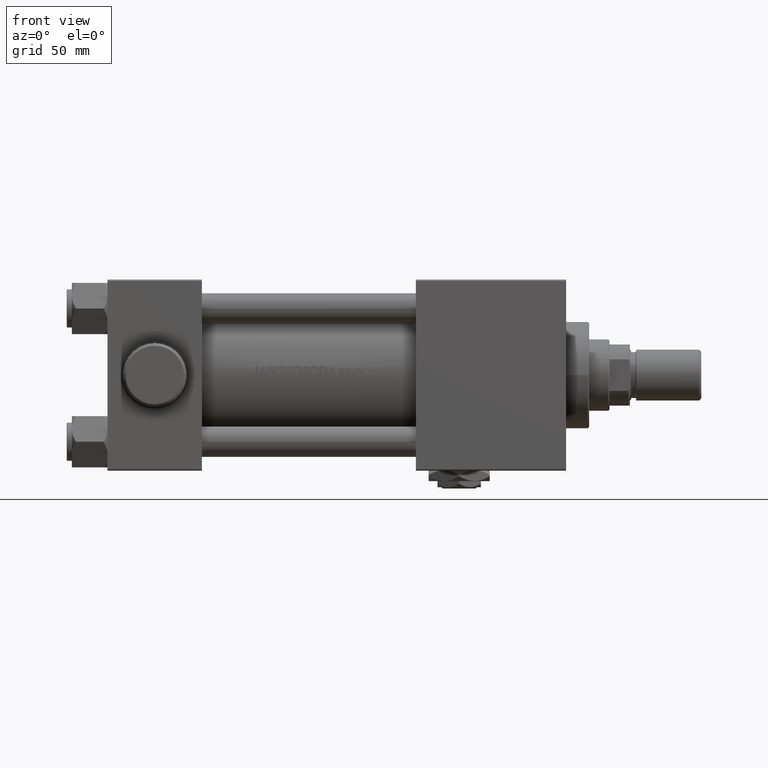
[diagram: clean part render]
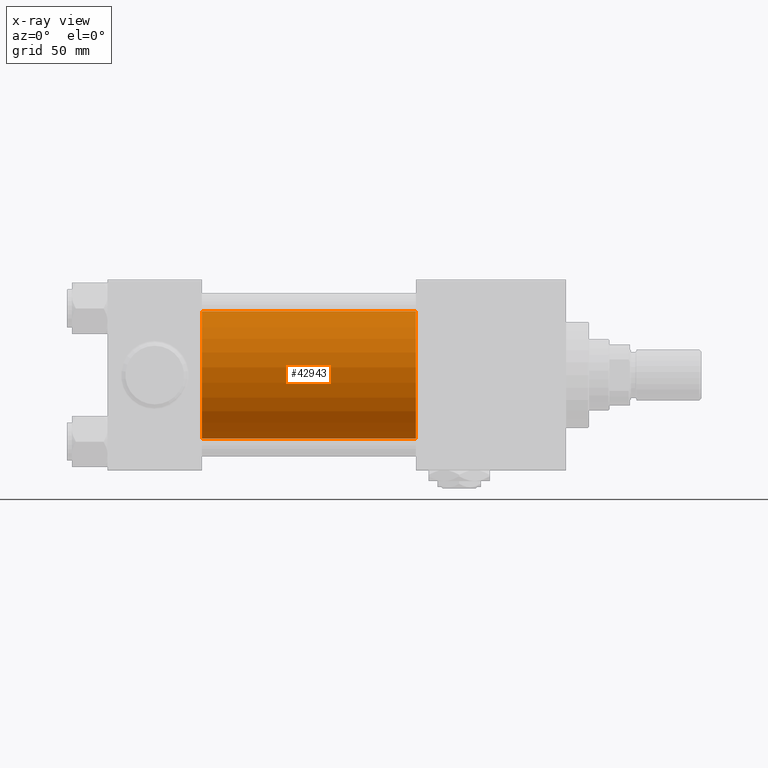
[diagram: x-ray — body ghosted, one internal face saturated and labeled with its STEP entity id]
A machine part, front view, then the same camera in x-ray: the body is ghosted and one INTERNAL B-rep face — a face not visible from any outside direction — is saturated and labeled: STEP entity #42943.
In plain terms, the highlighted cylindrical surface (partial cylindrical patch) has radius 25 mm, axis along (-1, -0, -0).
Its self-contained STEP definition (entity closure, byte-faithful):
#2104 = EDGE_CURVE ( 'NONE', #13877, #17465, #10193, .T. ) ;
#2132 = DIRECTION ( 'NONE',  ( 0.000000000000000000, 0.000000000000000000, -1.000000000000000000 ) ) ;
#6328 = CARTESIAN_POINT ( 'NONE',  ( 37.00000000000000000, -4.078299540852317872E-16, -25.00000000000000000 ) ) ;
#10193 = LINE ( 'NONE', #44637, #14612 ) ;
#12451 = ORIENTED_EDGE ( 'NONE', *, *, #41857, .T. ) ;
#13580 = ORIENTED_EDGE ( 'NONE', *, *, #41921, .T. ) ;
#13877 = VERTEX_POINT ( 'NONE', #22651 ) ;
#14612 = VECTOR ( 'NONE', #29019, 1000.000000000000000 ) ;
#16988 = CARTESIAN_POINT ( 'NONE',  ( 121.0000000000000000, -4.078299540852317872E-16, -25.00000000000000000 ) ) ;
#17465 = VERTEX_POINT ( 'NONE', #24243 ) ;
#17635 = VECTOR ( 'NONE', #24686, 1000.000000000000000 ) ;
#19555 = ORIENTED_EDGE ( 'NONE', *, *, #2104, .F. ) ;
#20122 = CYLINDRICAL_SURFACE ( 'NONE', #47695, 25.00000000000000000 ) ;
#21136 = CARTESIAN_POINT ( 'NONE',  ( 37.00000000000000000, -3.469446951953614189E-15, 0.000000000000000000 ) ) ;
#21210 = LINE ( 'NONE', #16988, #17635 ) ;
#22363 = CIRCLE ( 'NONE', #28682, 25.00000000000000000 ) ;
#22651 = CARTESIAN_POINT ( 'NONE',  ( 121.0000000000000000, -3.469446951953614189E-15, 25.00000000000000000 ) ) ;
#24243 = CARTESIAN_POINT ( 'NONE',  ( 37.00000000000000000, -3.469446951953614189E-15, 25.00000000000000000 ) ) ;
#24442 = CARTESIAN_POINT ( 'NONE',  ( 121.0000000000000000, -3.469446951953614189E-15, 0.000000000000000000 ) ) ;
#24686 = DIRECTION ( 'NONE',  ( -1.000000000000000000, -0.000000000000000000, -0.000000000000000000 ) ) ;
#27089 = DIRECTION ( 'NONE',  ( 0.000000000000000000, 0.000000000000000000, 1.000000000000000000 ) ) ;
#28682 = AXIS2_PLACEMENT_3D ( 'NONE', #21136, #36269, #32544 ) ;
#29019 = DIRECTION ( 'NONE',  ( -1.000000000000000000, -0.000000000000000000, -0.000000000000000000 ) ) ;
#29041 = ORIENTED_EDGE ( 'NONE', *, *, #40566, .F. ) ;
#29135 = DIRECTION ( 'NONE',  ( 1.000000000000000000, 0.000000000000000000, 0.000000000000000000 ) ) ;
#31180 = CARTESIAN_POINT ( 'NONE',  ( 121.0000000000000000, -4.078299540852317872E-16, -25.00000000000000000 ) ) ;
#32544 = DIRECTION ( 'NONE',  ( 0.000000000000000000, 0.000000000000000000, -1.000000000000000000 ) ) ;
#35415 = EDGE_LOOP ( 'NONE', ( #12451, #13580, #29041, #19555 ) ) ;
#36269 = DIRECTION ( 'NONE',  ( 1.000000000000000000, 0.000000000000000000, 0.000000000000000000 ) ) ;
#38512 = VERTEX_POINT ( 'NONE', #6328 ) ;
#39120 = VERTEX_POINT ( 'NONE', #31180 ) ;
#40566 = EDGE_CURVE ( 'NONE', #17465, #38512, #22363, .T. ) ;
#41857 = EDGE_CURVE ( 'NONE', #13877, #39120, #44542, .T. ) ;
#41921 = EDGE_CURVE ( 'NONE', #39120, #38512, #21210, .T. ) ;
#42210 = CARTESIAN_POINT ( 'NONE',  ( 121.0000000000000000, -3.469446951953614189E-15, 0.000000000000000000 ) ) ;
#42443 = DIRECTION ( 'NONE',  ( -1.000000000000000000, -0.000000000000000000, -0.000000000000000000 ) ) ;
#42943 = ADVANCED_FACE ( 'NONE', ( #46631 ), #20122, .F. ) ;
#44542 = CIRCLE ( 'NONE', #46922, 25.00000000000000000 ) ;
#44637 = CARTESIAN_POINT ( 'NONE',  ( 121.0000000000000000, -3.469446951953614189E-15, 25.00000000000000000 ) ) ;
#46631 = FACE_OUTER_BOUND ( 'NONE', #35415, .T. ) ;
#46922 = AXIS2_PLACEMENT_3D ( 'NONE', #24442, #29135, #2132 ) ;
#47695 = AXIS2_PLACEMENT_3D ( 'NONE', #42210, #42443, #27089 ) ;